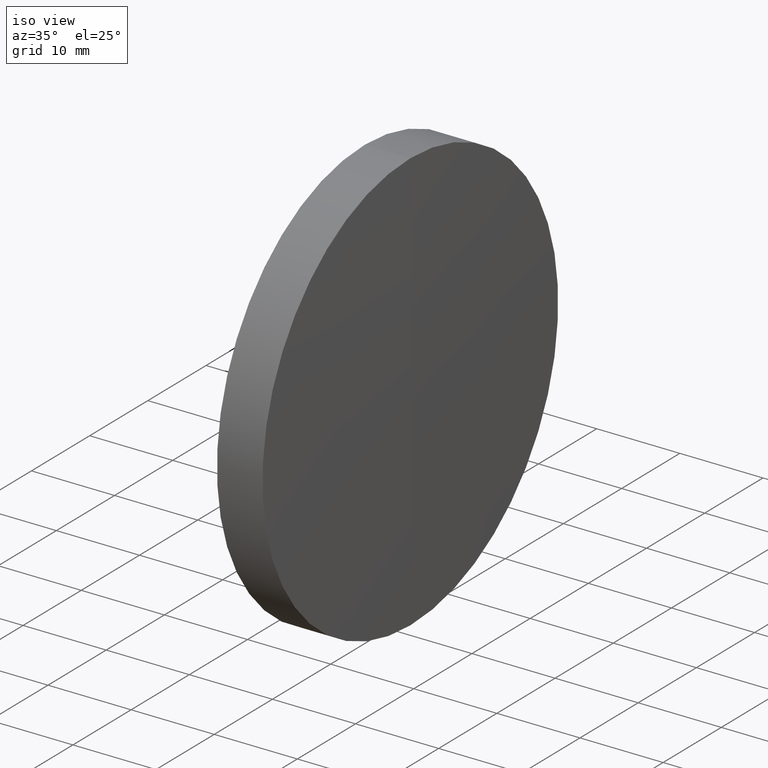
[diagram: clean part render]
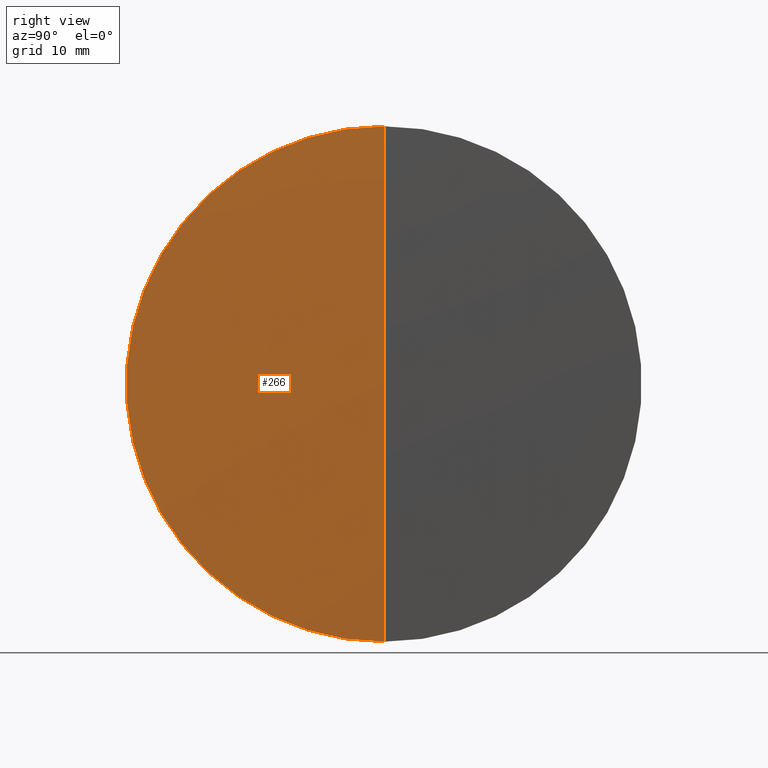
[diagram: tour spotlight — one face highlighted and labeled with its STEP entity id]
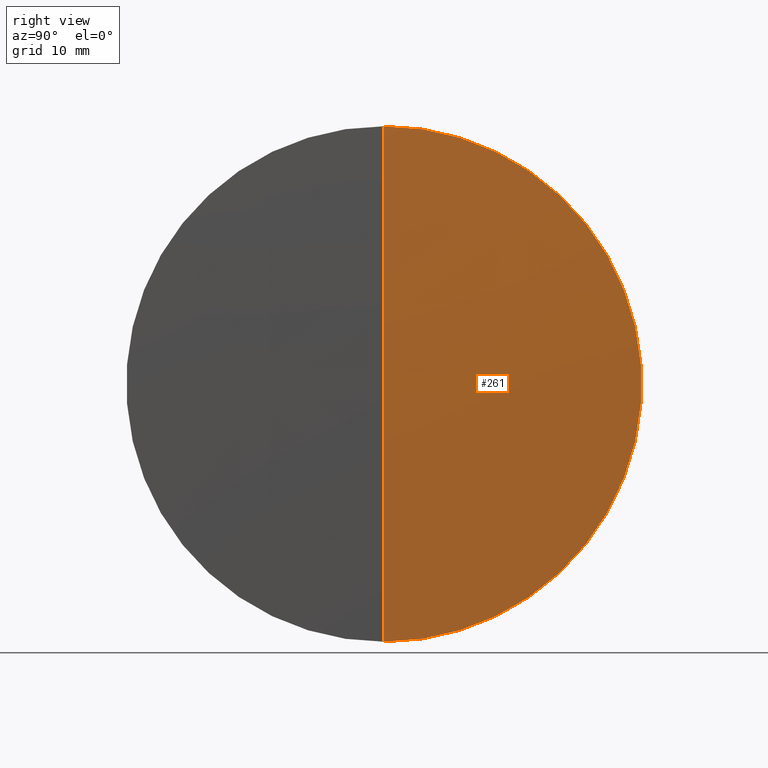
[diagram: tour spotlight — one face highlighted and labeled with its STEP entity id]
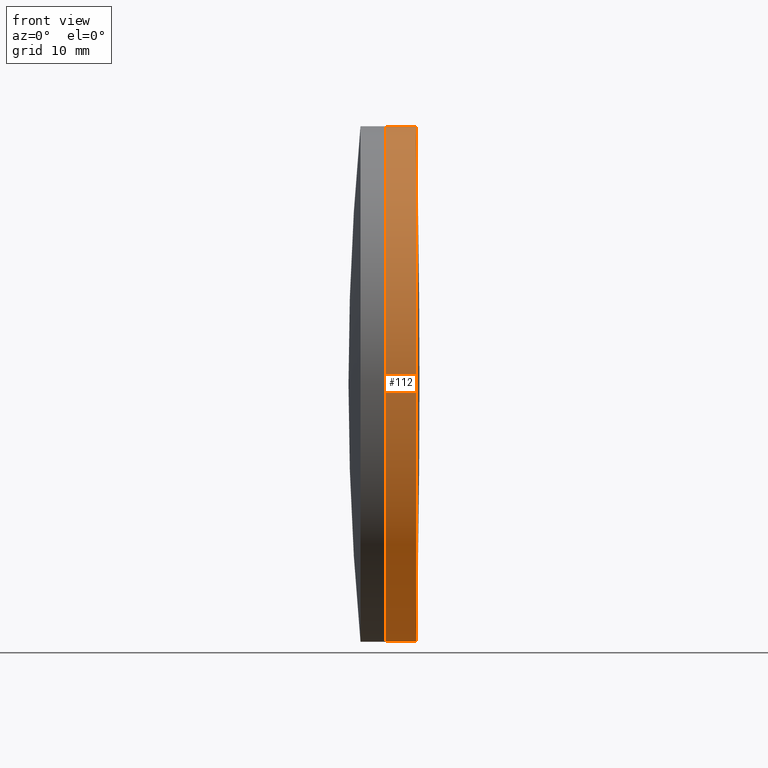
[diagram: tour spotlight — one face highlighted and labeled with its STEP entity id]
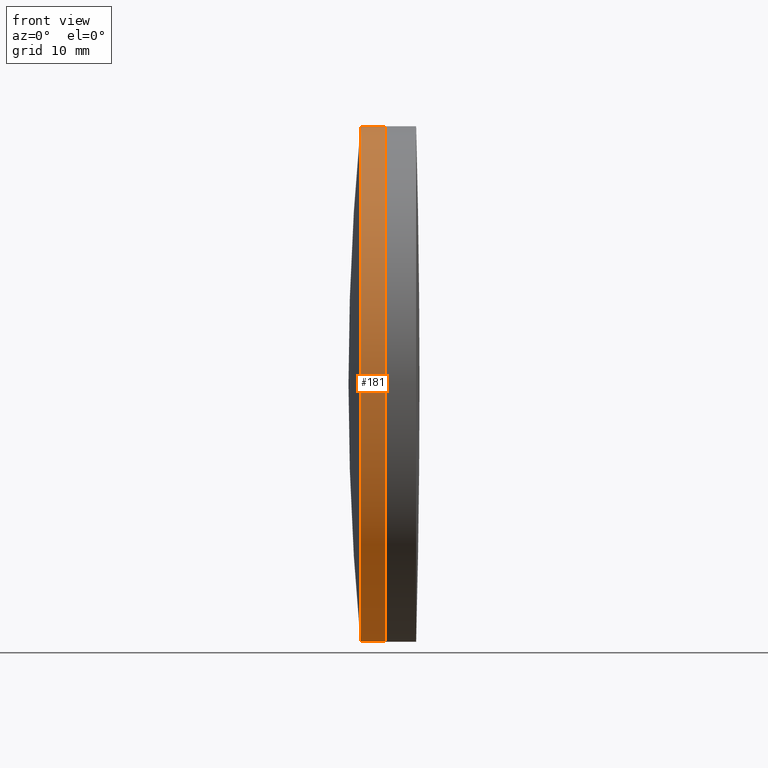
[diagram: tour spotlight — one face highlighted and labeled with its STEP entity id]
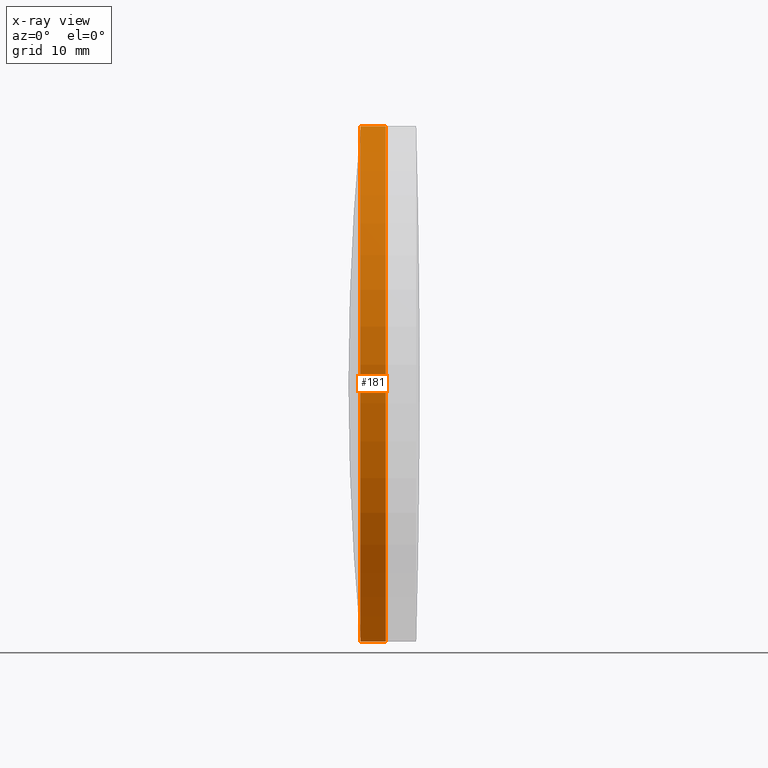
[diagram: x-ray of the same camera — body ghosted, this tour face saturated]
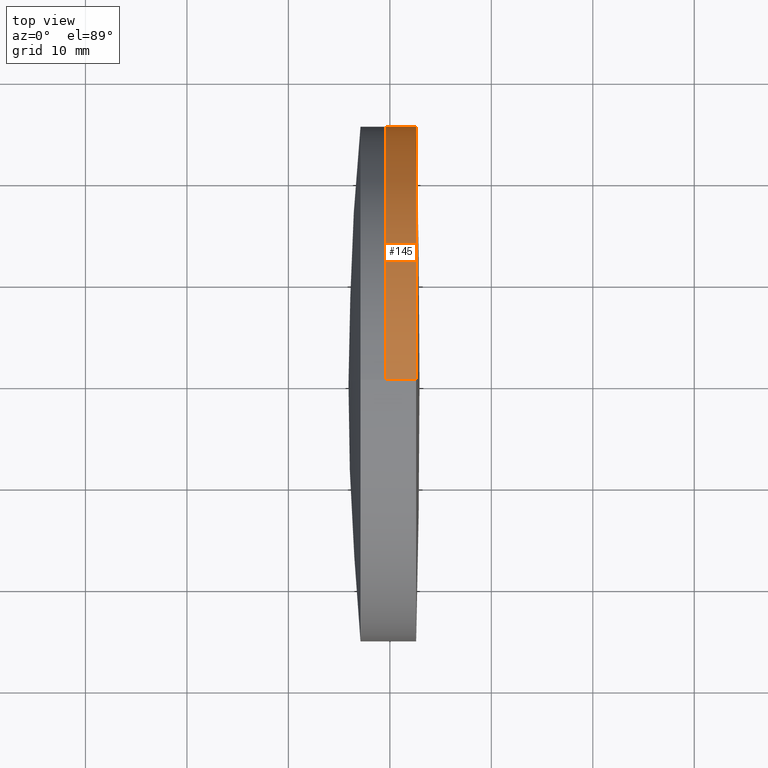
[diagram: tour spotlight — one face highlighted and labeled with its STEP entity id]
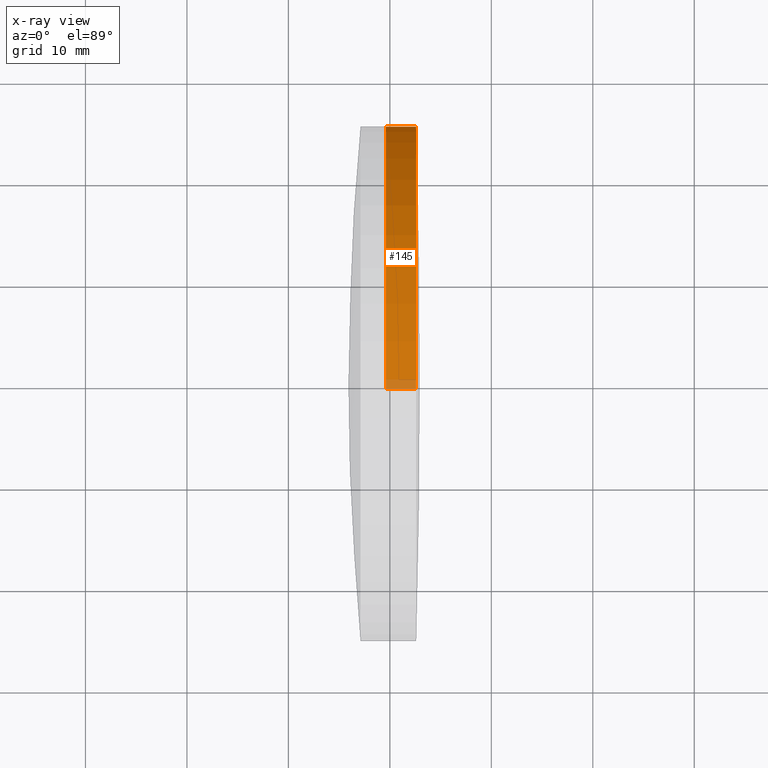
[diagram: x-ray of the same camera — body ghosted, this tour face saturated]
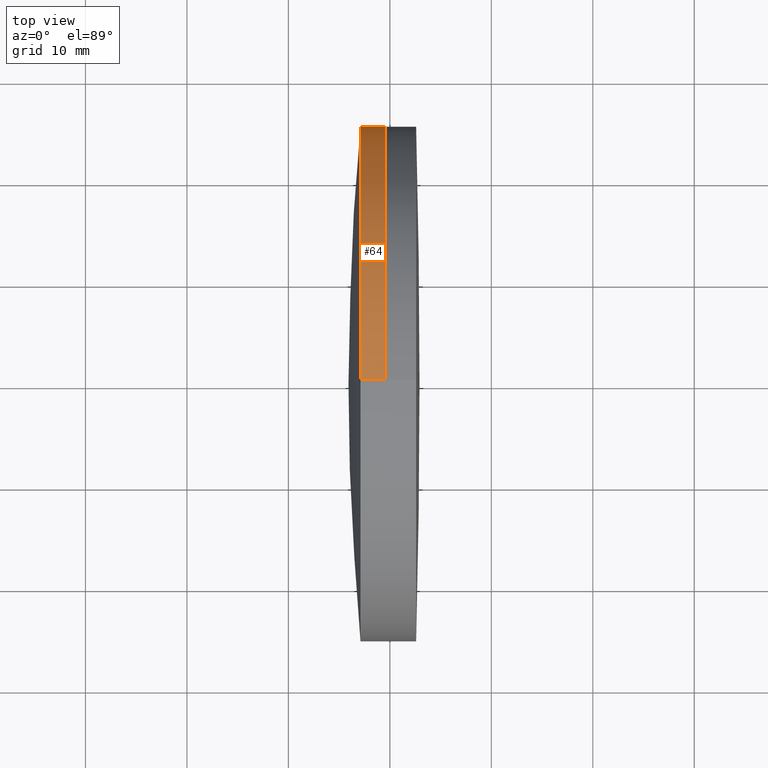
[diagram: tour spotlight — one face highlighted and labeled with its STEP entity id]
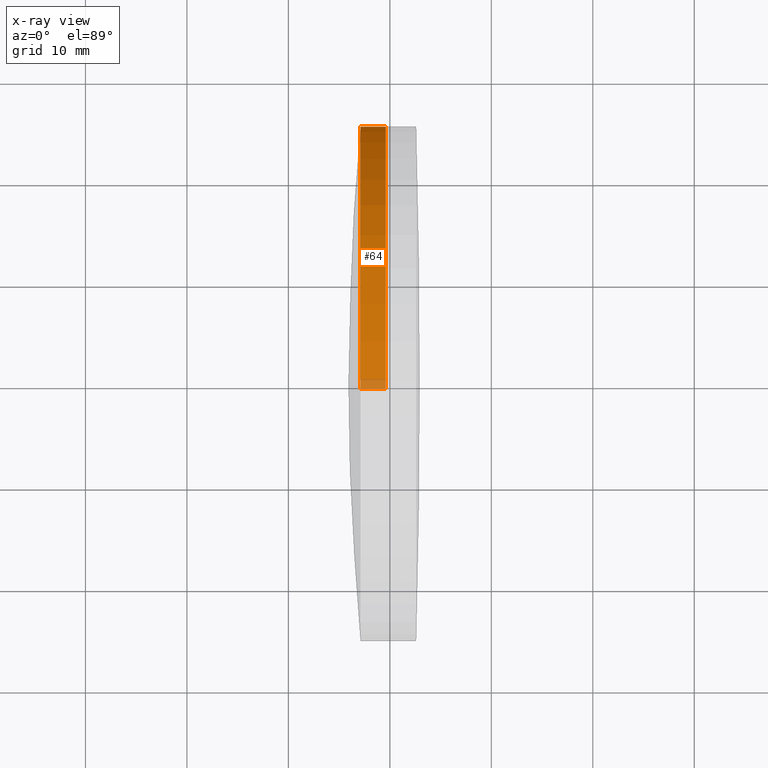
[diagram: x-ray of the same camera — body ghosted, this tour face saturated]
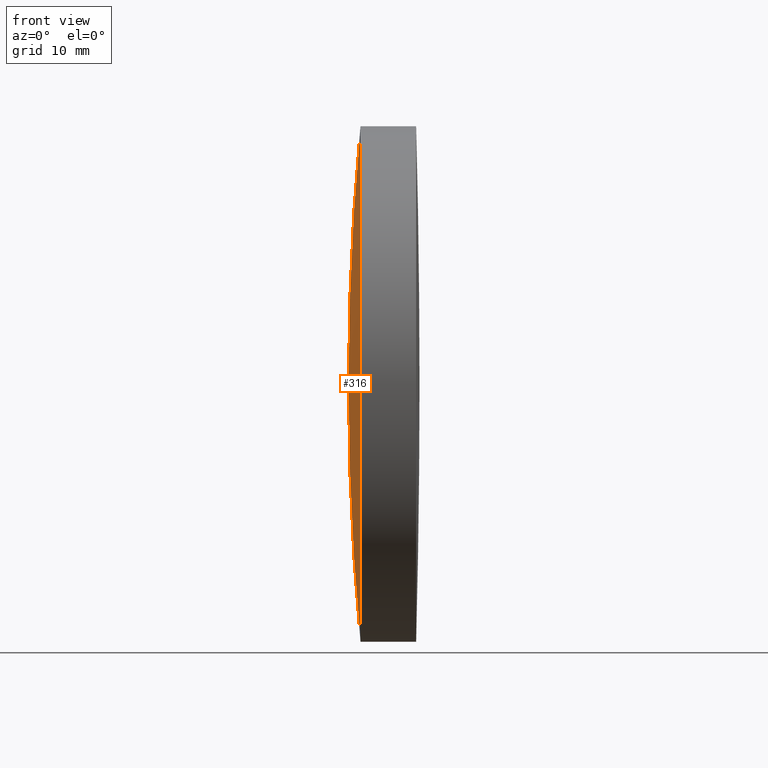
[diagram: tour spotlight — one face highlighted and labeled with its STEP entity id]
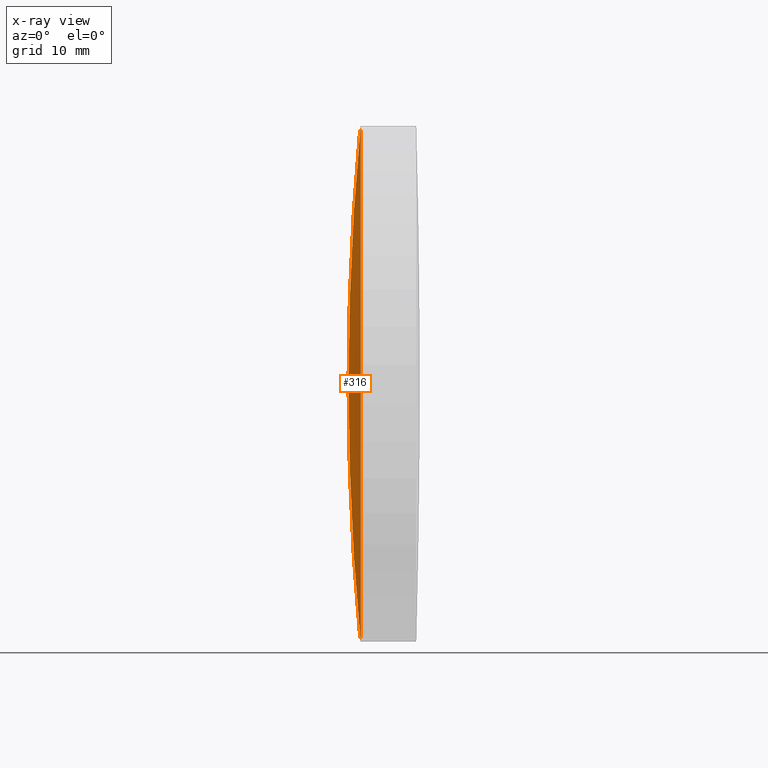
[diagram: x-ray of the same camera — body ghosted, this tour face saturated]
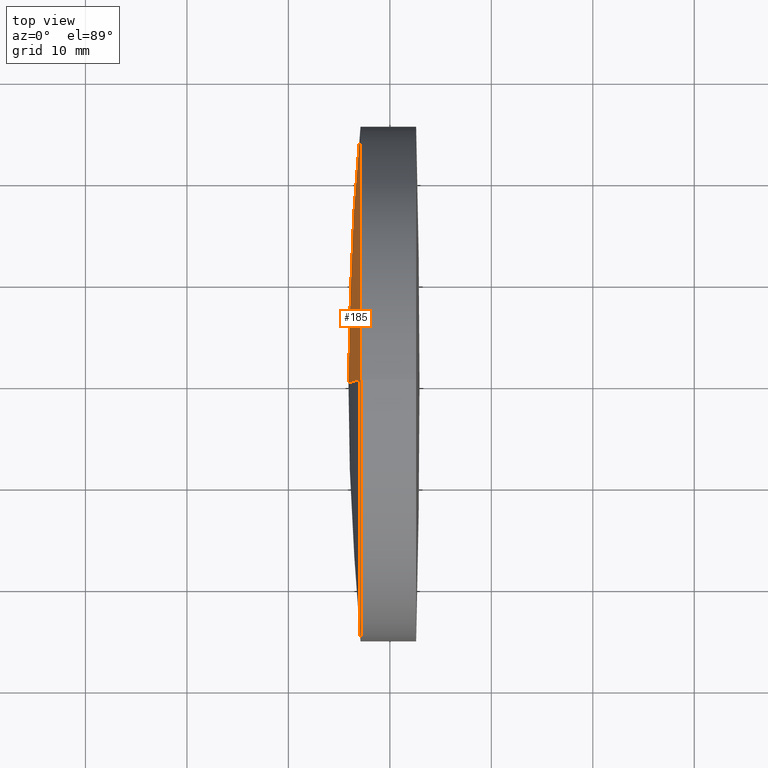
[diagram: tour spotlight — one face highlighted and labeled with its STEP entity id]
A machine part: a face-by-face anatomy tour. The part has 12 B-rep faces; the first image is the clean iso view, then the 8 largest visible faces are spotlighted one at a time (largest first), each with its STEP entity span.

Face 1 — right view, entity #266. In plain terms, the highlighted spherical surface has radius 970 mm.
Definition (entity closure, byte-faithful):
#17 = DIRECTION ( 'NONE',  ( 0.0000000000000000000, -1.000000000000000000, 0.0000000000000000000 ) ) ;
#41 = CARTESIAN_POINT ( 'NONE',  ( -467.0782175569086100, 0.0000000000000000000, 0.0000000000000000000 ) ) ;
#49 = DIRECTION ( 'NONE',  ( -0.0000000000000000000, 1.000000000000000000, 1.224646799147353200E-016 ) ) ;
#68 = AXIS2_PLACEMENT_3D ( 'NONE', #41, #92, #297 ) ;
#87 = CARTESIAN_POINT ( 'NONE',  ( 502.9217824430913900, 0.0000000000000000000, 5.939536975864663500E-014 ) ) ;
#92 = DIRECTION ( 'NONE',  ( 0.0000000000000000000, 1.000000000000000000, 0.0000000000000000000 ) ) ;
#103 = CIRCLE ( 'NONE', #183, 25.39999999999961100 ) ;
#111 = DIRECTION ( 'NONE',  ( 0.0000000000000000000, 0.0000000000000000000, 1.000000000000000000 ) ) ;
#139 = CARTESIAN_POINT ( 'NONE',  ( -467.0782175569086100, 0.0000000000000000000, 0.0000000000000000000 ) ) ;
#143 = FACE_OUTER_BOUND ( 'NONE', #303, .T. ) ;
#150 = AXIS2_PLACEMENT_3D ( 'NONE', #139, #17, #204 ) ;
#164 = ORIENTED_EDGE ( 'NONE', *, *, #315, .F. ) ;
#176 = SPHERICAL_SURFACE ( 'NONE', #68, 970.0000000000000000 ) ;
#183 = AXIS2_PLACEMENT_3D ( 'NONE', #184, #239, #111 ) ;
#184 = CARTESIAN_POINT ( 'NONE',  ( 502.5891687153119800, 0.0000000000000000000, 0.0000000000000000000 ) ) ;
#193 = EDGE_CURVE ( 'NONE', #284, #222, #299, .T. ) ;
#196 = VERTEX_POINT ( 'NONE', #259 ) ;
#204 = DIRECTION ( 'NONE',  ( 0.0000000000000000000, 0.0000000000000000000, -1.000000000000000000 ) ) ;
#215 = DIRECTION ( 'NONE',  ( 0.0000000000000000000, -1.224646799147353200E-016, 1.000000000000000000 ) ) ;
#222 = VERTEX_POINT ( 'NONE', #340 ) ;
#236 = ORIENTED_EDGE ( 'NONE', *, *, #193, .T. ) ;
#239 = DIRECTION ( 'NONE',  ( -1.000000000000000000, -0.0000000000000000000, -0.0000000000000000000 ) ) ;
#241 = CARTESIAN_POINT ( 'NONE',  ( -467.0782175569086100, 0.0000000000000000000, 0.0000000000000000000 ) ) ;
#248 = EDGE_CURVE ( 'NONE', #196, #222, #103, .T. ) ;
#259 = CARTESIAN_POINT ( 'NONE',  ( 502.5891687153119800, 3.110602869834232300E-015, -25.39999999999961100 ) ) ;
#266 = ADVANCED_FACE ( 'NONE', ( #143 ), #176, .T. ) ;
#268 = ORIENTED_EDGE ( 'NONE', *, *, #248, .F. ) ;
#284 = VERTEX_POINT ( 'NONE', #87 ) ;
#297 = DIRECTION ( 'NONE',  ( 0.0000000000000000000, 0.0000000000000000000, 1.000000000000000000 ) ) ;
#299 = CIRCLE ( 'NONE', #150, 970.0000000000000000 ) ;
#302 = AXIS2_PLACEMENT_3D ( 'NONE', #241, #49, #215 ) ;
#303 = EDGE_LOOP ( 'NONE', ( #164, #236, #268 ) ) ;
#315 = EDGE_CURVE ( 'NONE', #284, #196, #335, .T. ) ;
#335 = CIRCLE ( 'NONE', #302, 970.0000000000000000 ) ;
#340 = CARTESIAN_POINT ( 'NONE',  ( 502.5891687153119800, 0.0000000000000000000, 25.39999999999961100 ) ) ;

Face 2 — right view, entity #261. In plain terms, the highlighted spherical surface has radius 970 mm.
Definition (entity closure, byte-faithful):
#10 = ORIENTED_EDGE ( 'NONE', *, *, #193, .F. ) ;
#17 = DIRECTION ( 'NONE',  ( 0.0000000000000000000, -1.000000000000000000, 0.0000000000000000000 ) ) ;
#37 = AXIS2_PLACEMENT_3D ( 'NONE', #290, #323, #346 ) ;
#40 = DIRECTION ( 'NONE',  ( 0.0000000000000000000, 1.000000000000000000, 0.0000000000000000000 ) ) ;
#49 = DIRECTION ( 'NONE',  ( -0.0000000000000000000, 1.000000000000000000, 1.224646799147353200E-016 ) ) ;
#56 = SPHERICAL_SURFACE ( 'NONE', #57, 970.0000000000000000 ) ;
#57 = AXIS2_PLACEMENT_3D ( 'NONE', #116, #40, #177 ) ;
#87 = CARTESIAN_POINT ( 'NONE',  ( 502.9217824430913900, 0.0000000000000000000, 5.939536975864663500E-014 ) ) ;
#110 = ORIENTED_EDGE ( 'NONE', *, *, #315, .T. ) ;
#116 = CARTESIAN_POINT ( 'NONE',  ( -467.0782175569086100, 0.0000000000000000000, 0.0000000000000000000 ) ) ;
#118 = EDGE_LOOP ( 'NONE', ( #10, #110, #338 ) ) ;
#139 = CARTESIAN_POINT ( 'NONE',  ( -467.0782175569086100, 0.0000000000000000000, 0.0000000000000000000 ) ) ;
#150 = AXIS2_PLACEMENT_3D ( 'NONE', #139, #17, #204 ) ;
#177 = DIRECTION ( 'NONE',  ( 0.0000000000000000000, 0.0000000000000000000, 1.000000000000000000 ) ) ;
#193 = EDGE_CURVE ( 'NONE', #284, #222, #299, .T. ) ;
#196 = VERTEX_POINT ( 'NONE', #259 ) ;
#204 = DIRECTION ( 'NONE',  ( 0.0000000000000000000, 0.0000000000000000000, -1.000000000000000000 ) ) ;
#215 = DIRECTION ( 'NONE',  ( 0.0000000000000000000, -1.224646799147353200E-016, 1.000000000000000000 ) ) ;
#220 = CIRCLE ( 'NONE', #37, 25.39999999999961100 ) ;
#222 = VERTEX_POINT ( 'NONE', #340 ) ;
#241 = CARTESIAN_POINT ( 'NONE',  ( -467.0782175569086100, 0.0000000000000000000, 0.0000000000000000000 ) ) ;
#242 = EDGE_CURVE ( 'NONE', #222, #196, #220, .T. ) ;
#259 = CARTESIAN_POINT ( 'NONE',  ( 502.5891687153119800, 3.110602869834232300E-015, -25.39999999999961100 ) ) ;
#260 = FACE_OUTER_BOUND ( 'NONE', #118, .T. ) ;
#261 = ADVANCED_FACE ( 'NONE', ( #260 ), #56, .T. ) ;
#284 = VERTEX_POINT ( 'NONE', #87 ) ;
#290 = CARTESIAN_POINT ( 'NONE',  ( 502.5891687153119800, 0.0000000000000000000, 0.0000000000000000000 ) ) ;
#299 = CIRCLE ( 'NONE', #150, 970.0000000000000000 ) ;
#302 = AXIS2_PLACEMENT_3D ( 'NONE', #241, #49, #215 ) ;
#315 = EDGE_CURVE ( 'NONE', #284, #196, #335, .T. ) ;
#323 = DIRECTION ( 'NONE',  ( -1.000000000000000000, -0.0000000000000000000, -0.0000000000000000000 ) ) ;
#335 = CIRCLE ( 'NONE', #302, 970.0000000000000000 ) ;
#338 = ORIENTED_EDGE ( 'NONE', *, *, #242, .F. ) ;
#340 = CARTESIAN_POINT ( 'NONE',  ( 502.5891687153119800, 0.0000000000000000000, 25.39999999999961100 ) ) ;
#346 = DIRECTION ( 'NONE',  ( 0.0000000000000000000, 0.0000000000000000000, 1.000000000000000000 ) ) ;

Face 3 — front view, entity #112. In plain terms, the highlighted cylindrical surface (partial cylindrical patch) has radius 25.4 mm, axis along (-1, -0, -0).
Definition (entity closure, byte-faithful):
#19 = CARTESIAN_POINT ( 'NONE',  ( 499.5922971757753400, 0.0000000000000000000, 25.39999999999962900 ) ) ;
#35 = DIRECTION ( 'NONE',  ( 0.0000000000000000000, 0.0000000000000000000, 1.000000000000000000 ) ) ;
#55 = ORIENTED_EDGE ( 'NONE', *, *, #248, .T. ) ;
#75 = EDGE_CURVE ( 'NONE', #196, #280, #218, .T. ) ;
#84 = CARTESIAN_POINT ( 'NONE',  ( -0.5519199926577972300, 0.0000000000000000000, 25.39999999999965000 ) ) ;
#86 = VECTOR ( 'NONE', #228, 1000.000000000000000 ) ;
#91 = EDGE_CURVE ( 'NONE', #222, #235, #311, .T. ) ;
#97 = EDGE_LOOP ( 'NONE', ( #308, #55, #104, #210 ) ) ;
#103 = CIRCLE ( 'NONE', #183, 25.39999999999961100 ) ;
#104 = ORIENTED_EDGE ( 'NONE', *, *, #91, .T. ) ;
#109 = CARTESIAN_POINT ( 'NONE',  ( -0.5519199926577972300, 0.0000000000000000000, 0.0000000000000000000 ) ) ;
#111 = DIRECTION ( 'NONE',  ( 0.0000000000000000000, 0.0000000000000000000, 1.000000000000000000 ) ) ;
#112 = ADVANCED_FACE ( 'NONE', ( #253 ), #179, .T. ) ;
#147 = DIRECTION ( 'NONE',  ( -1.000000000000000000, -0.0000000000000000000, -0.0000000000000000000 ) ) ;
#179 = CYLINDRICAL_SURFACE ( 'NONE', #334, 25.39999999999965000 ) ;
#183 = AXIS2_PLACEMENT_3D ( 'NONE', #184, #239, #111 ) ;
#184 = CARTESIAN_POINT ( 'NONE',  ( 502.5891687153119800, 0.0000000000000000000, 0.0000000000000000000 ) ) ;
#196 = VERTEX_POINT ( 'NONE', #259 ) ;
#203 = AXIS2_PLACEMENT_3D ( 'NONE', #269, #147, #207 ) ;
#207 = DIRECTION ( 'NONE',  ( 0.0000000000000000000, 0.0000000000000000000, 1.000000000000000000 ) ) ;
#210 = ORIENTED_EDGE ( 'NONE', *, *, #271, .F. ) ;
#218 = LINE ( 'NONE', #226, #86 ) ;
#222 = VERTEX_POINT ( 'NONE', #340 ) ;
#226 = CARTESIAN_POINT ( 'NONE',  ( -0.5519199926577972300, 3.110602869834234700E-015, -25.39999999999965000 ) ) ;
#228 = DIRECTION ( 'NONE',  ( -1.000000000000000000, -0.0000000000000000000, -0.0000000000000000000 ) ) ;
#235 = VERTEX_POINT ( 'NONE', #19 ) ;
#238 = CARTESIAN_POINT ( 'NONE',  ( 499.5922971757753400, 3.110602869834231500E-015, -25.39999999999962900 ) ) ;
#239 = DIRECTION ( 'NONE',  ( -1.000000000000000000, -0.0000000000000000000, -0.0000000000000000000 ) ) ;
#248 = EDGE_CURVE ( 'NONE', #196, #222, #103, .T. ) ;
#253 = FACE_OUTER_BOUND ( 'NONE', #97, .T. ) ;
#259 = CARTESIAN_POINT ( 'NONE',  ( 502.5891687153119800, 3.110602869834232300E-015, -25.39999999999961100 ) ) ;
#267 = CIRCLE ( 'NONE', #203, 25.39999999999969300 ) ;
#269 = CARTESIAN_POINT ( 'NONE',  ( 499.5922971757753400, 0.0000000000000000000, 0.0000000000000000000 ) ) ;
#271 = EDGE_CURVE ( 'NONE', #280, #235, #267, .T. ) ;
#280 = VERTEX_POINT ( 'NONE', #238 ) ;
#289 = DIRECTION ( 'NONE',  ( -1.000000000000000000, -0.0000000000000000000, -0.0000000000000000000 ) ) ;
#294 = VECTOR ( 'NONE', #289, 1000.000000000000000 ) ;
#308 = ORIENTED_EDGE ( 'NONE', *, *, #75, .F. ) ;
#311 = LINE ( 'NONE', #84, #294 ) ;
#314 = DIRECTION ( 'NONE',  ( -1.000000000000000000, -0.0000000000000000000, -0.0000000000000000000 ) ) ;
#334 = AXIS2_PLACEMENT_3D ( 'NONE', #109, #314, #35 ) ;
#340 = CARTESIAN_POINT ( 'NONE',  ( 502.5891687153119800, 0.0000000000000000000, 25.39999999999961100 ) ) ;

Face 4 — front view, entity #181. An x-ray twin of the same camera follows (body ghosted, this face saturated) — the face is partly hidden behind the body. In plain terms, the highlighted cylindrical surface (partial cylindrical patch) has radius 25.4 mm, axis along (-1, -0, -0).
Definition (entity closure, byte-faithful):
#6 = VECTOR ( 'NONE', #11, 1000.000000000000000 ) ;
#11 = DIRECTION ( 'NONE',  ( -1.000000000000000000, -0.0000000000000000000, -0.0000000000000000000 ) ) ;
#12 = EDGE_CURVE ( 'NONE', #211, #15, #39, .T. ) ;
#15 = VERTEX_POINT ( 'NONE', #224 ) ;
#16 = DIRECTION ( 'NONE',  ( 0.0000000000000000000, 0.0000000000000000000, 1.000000000000000000 ) ) ;
#39 = LINE ( 'NONE', #165, #6 ) ;
#48 = ORIENTED_EDGE ( 'NONE', *, *, #158, .T. ) ;
#53 = EDGE_CURVE ( 'NONE', #211, #71, #281, .T. ) ;
#60 = ORIENTED_EDGE ( 'NONE', *, *, #12, .F. ) ;
#63 = DIRECTION ( 'NONE',  ( -1.000000000000000000, -0.0000000000000000000, -0.0000000000000000000 ) ) ;
#71 = VERTEX_POINT ( 'NONE', #221 ) ;
#77 = FACE_OUTER_BOUND ( 'NONE', #192, .T. ) ;
#89 = VERTEX_POINT ( 'NONE', #108 ) ;
#108 = CARTESIAN_POINT ( 'NONE',  ( 497.1063982632478000, -3.110602869834300500E-015, 25.40000000000019800 ) ) ;
#117 = CYLINDRICAL_SURFACE ( 'NONE', #209, 25.40000000000000200 ) ;
#121 = AXIS2_PLACEMENT_3D ( 'NONE', #332, #132, #134 ) ;
#132 = DIRECTION ( 'NONE',  ( -1.000000000000000000, -0.0000000000000000000, -0.0000000000000000000 ) ) ;
#134 = DIRECTION ( 'NONE',  ( 0.0000000000000000000, 0.0000000000000000000, 1.000000000000000000 ) ) ;
#137 = LINE ( 'NONE', #310, #233 ) ;
#158 = EDGE_CURVE ( 'NONE', #71, #89, #137, .T. ) ;
#165 = CARTESIAN_POINT ( 'NONE',  ( 124.5233095260452400, 3.110602869834277300E-015, -25.40000000000000200 ) ) ;
#170 = DIRECTION ( 'NONE',  ( -1.000000000000000000, -0.0000000000000000000, -0.0000000000000000000 ) ) ;
#180 = ORIENTED_EDGE ( 'NONE', *, *, #230, .F. ) ;
#181 = ADVANCED_FACE ( 'NONE', ( #77 ), #117, .T. ) ;
#182 = ORIENTED_EDGE ( 'NONE', *, *, #53, .T. ) ;
#192 = EDGE_LOOP ( 'NONE', ( #60, #182, #48, #180 ) ) ;
#209 = AXIS2_PLACEMENT_3D ( 'NONE', #232, #170, #16 ) ;
#211 = VERTEX_POINT ( 'NONE', #282 ) ;
#212 = DIRECTION ( 'NONE',  ( 0.0000000000000000000, 0.0000000000000000000, 1.000000000000000000 ) ) ;
#221 = CARTESIAN_POINT ( 'NONE',  ( 499.5922971757753400, 0.0000000000000000000, 25.40000000000000200 ) ) ;
#224 = CARTESIAN_POINT ( 'NONE',  ( 497.1063982632478000, 0.0000000000000000000, -25.40000000000019400 ) ) ;
#230 = EDGE_CURVE ( 'NONE', #15, #89, #331, .T. ) ;
#232 = CARTESIAN_POINT ( 'NONE',  ( 124.5233095260452400, 0.0000000000000000000, 0.0000000000000000000 ) ) ;
#233 = VECTOR ( 'NONE', #339, 1000.000000000000000 ) ;
#281 = CIRCLE ( 'NONE', #121, 25.40000000000000200 ) ;
#282 = CARTESIAN_POINT ( 'NONE',  ( 499.5922971757753400, 3.110602869834277300E-015, -25.40000000000000200 ) ) ;
#293 = CARTESIAN_POINT ( 'NONE',  ( 497.1063982632478000, 0.0000000000000000000, 0.0000000000000000000 ) ) ;
#305 = AXIS2_PLACEMENT_3D ( 'NONE', #293, #63, #212 ) ;
#310 = CARTESIAN_POINT ( 'NONE',  ( 124.5233095260452400, 0.0000000000000000000, 25.40000000000000200 ) ) ;
#331 = CIRCLE ( 'NONE', #305, 25.40000000000000200 ) ;
#332 = CARTESIAN_POINT ( 'NONE',  ( 499.5922971757753400, 0.0000000000000000000, 0.0000000000000000000 ) ) ;
#339 = DIRECTION ( 'NONE',  ( -1.000000000000000000, -0.0000000000000000000, -0.0000000000000000000 ) ) ;

Face 5 — top view, entity #145. An x-ray twin of the same camera follows (body ghosted, this face saturated) — the face is partly hidden behind the body. In plain terms, the highlighted cylindrical surface (partial cylindrical patch) has radius 25.4 mm, axis along (-1, -0, -0).
Definition (entity closure, byte-faithful):
#19 = CARTESIAN_POINT ( 'NONE',  ( 499.5922971757753400, 0.0000000000000000000, 25.39999999999962900 ) ) ;
#26 = FACE_OUTER_BOUND ( 'NONE', #173, .T. ) ;
#32 = ORIENTED_EDGE ( 'NONE', *, *, #91, .F. ) ;
#33 = ORIENTED_EDGE ( 'NONE', *, *, #178, .F. ) ;
#36 = ORIENTED_EDGE ( 'NONE', *, *, #242, .T. ) ;
#37 = AXIS2_PLACEMENT_3D ( 'NONE', #290, #323, #346 ) ;
#75 = EDGE_CURVE ( 'NONE', #196, #280, #218, .T. ) ;
#81 = CYLINDRICAL_SURFACE ( 'NONE', #169, 25.39999999999965000 ) ;
#84 = CARTESIAN_POINT ( 'NONE',  ( -0.5519199926577972300, 0.0000000000000000000, 25.39999999999965000 ) ) ;
#86 = VECTOR ( 'NONE', #228, 1000.000000000000000 ) ;
#91 = EDGE_CURVE ( 'NONE', #222, #235, #311, .T. ) ;
#105 = CARTESIAN_POINT ( 'NONE',  ( -0.5519199926577972300, 0.0000000000000000000, 0.0000000000000000000 ) ) ;
#145 = ADVANCED_FACE ( 'NONE', ( #26 ), #81, .T. ) ;
#169 = AXIS2_PLACEMENT_3D ( 'NONE', #105, #285, #206 ) ;
#171 = DIRECTION ( 'NONE',  ( 0.0000000000000000000, 0.0000000000000000000, 1.000000000000000000 ) ) ;
#173 = EDGE_LOOP ( 'NONE', ( #36, #341, #33, #32 ) ) ;
#174 = CARTESIAN_POINT ( 'NONE',  ( 499.5922971757753400, 0.0000000000000000000, 0.0000000000000000000 ) ) ;
#178 = EDGE_CURVE ( 'NONE', #235, #280, #256, .T. ) ;
#196 = VERTEX_POINT ( 'NONE', #259 ) ;
#206 = DIRECTION ( 'NONE',  ( 0.0000000000000000000, 0.0000000000000000000, 1.000000000000000000 ) ) ;
#218 = LINE ( 'NONE', #226, #86 ) ;
#220 = CIRCLE ( 'NONE', #37, 25.39999999999961100 ) ;
#222 = VERTEX_POINT ( 'NONE', #340 ) ;
#226 = CARTESIAN_POINT ( 'NONE',  ( -0.5519199926577972300, 3.110602869834234700E-015, -25.39999999999965000 ) ) ;
#228 = DIRECTION ( 'NONE',  ( -1.000000000000000000, -0.0000000000000000000, -0.0000000000000000000 ) ) ;
#235 = VERTEX_POINT ( 'NONE', #19 ) ;
#238 = CARTESIAN_POINT ( 'NONE',  ( 499.5922971757753400, 3.110602869834231500E-015, -25.39999999999962900 ) ) ;
#242 = EDGE_CURVE ( 'NONE', #222, #196, #220, .T. ) ;
#256 = CIRCLE ( 'NONE', #343, 25.39999999999969300 ) ;
#259 = CARTESIAN_POINT ( 'NONE',  ( 502.5891687153119800, 3.110602869834232300E-015, -25.39999999999961100 ) ) ;
#280 = VERTEX_POINT ( 'NONE', #238 ) ;
#285 = DIRECTION ( 'NONE',  ( -1.000000000000000000, -0.0000000000000000000, -0.0000000000000000000 ) ) ;
#289 = DIRECTION ( 'NONE',  ( -1.000000000000000000, -0.0000000000000000000, -0.0000000000000000000 ) ) ;
#290 = CARTESIAN_POINT ( 'NONE',  ( 502.5891687153119800, 0.0000000000000000000, 0.0000000000000000000 ) ) ;
#294 = VECTOR ( 'NONE', #289, 1000.000000000000000 ) ;
#311 = LINE ( 'NONE', #84, #294 ) ;
#312 = DIRECTION ( 'NONE',  ( -1.000000000000000000, -0.0000000000000000000, -0.0000000000000000000 ) ) ;
#323 = DIRECTION ( 'NONE',  ( -1.000000000000000000, -0.0000000000000000000, -0.0000000000000000000 ) ) ;
#340 = CARTESIAN_POINT ( 'NONE',  ( 502.5891687153119800, 0.0000000000000000000, 25.39999999999961100 ) ) ;
#341 = ORIENTED_EDGE ( 'NONE', *, *, #75, .T. ) ;
#343 = AXIS2_PLACEMENT_3D ( 'NONE', #174, #312, #171 ) ;
#346 = DIRECTION ( 'NONE',  ( 0.0000000000000000000, 0.0000000000000000000, 1.000000000000000000 ) ) ;

Face 6 — top view, entity #64. An x-ray twin of the same camera follows (body ghosted, this face saturated) — the face is partly hidden behind the body. In plain terms, the highlighted cylindrical surface (partial cylindrical patch) has radius 25.4 mm, axis along (-1, -0, -0).
Definition (entity closure, byte-faithful):
#1 = FACE_OUTER_BOUND ( 'NONE', #96, .T. ) ;
#6 = VECTOR ( 'NONE', #11, 1000.000000000000000 ) ;
#11 = DIRECTION ( 'NONE',  ( -1.000000000000000000, -0.0000000000000000000, -0.0000000000000000000 ) ) ;
#12 = EDGE_CURVE ( 'NONE', #211, #15, #39, .T. ) ;
#15 = VERTEX_POINT ( 'NONE', #224 ) ;
#28 = ORIENTED_EDGE ( 'NONE', *, *, #205, .F. ) ;
#29 = CARTESIAN_POINT ( 'NONE',  ( 124.5233095260452400, 0.0000000000000000000, 0.0000000000000000000 ) ) ;
#30 = CIRCLE ( 'NONE', #325, 25.40000000000000200 ) ;
#34 = DIRECTION ( 'NONE',  ( -1.000000000000000000, -0.0000000000000000000, -0.0000000000000000000 ) ) ;
#39 = LINE ( 'NONE', #165, #6 ) ;
#64 = ADVANCED_FACE ( 'NONE', ( #1 ), #320, .T. ) ;
#66 = CARTESIAN_POINT ( 'NONE',  ( 499.5922971757753400, 0.0000000000000000000, 0.0000000000000000000 ) ) ;
#71 = VERTEX_POINT ( 'NONE', #221 ) ;
#89 = VERTEX_POINT ( 'NONE', #108 ) ;
#94 = CIRCLE ( 'NONE', #227, 25.40000000000000200 ) ;
#96 = EDGE_LOOP ( 'NONE', ( #295, #148, #28, #225 ) ) ;
#108 = CARTESIAN_POINT ( 'NONE',  ( 497.1063982632478000, -3.110602869834300500E-015, 25.40000000000019800 ) ) ;
#127 = AXIS2_PLACEMENT_3D ( 'NONE', #29, #34, #167 ) ;
#137 = LINE ( 'NONE', #310, #233 ) ;
#148 = ORIENTED_EDGE ( 'NONE', *, *, #12, .T. ) ;
#149 = DIRECTION ( 'NONE',  ( -1.000000000000000000, -0.0000000000000000000, -0.0000000000000000000 ) ) ;
#152 = DIRECTION ( 'NONE',  ( 0.0000000000000000000, 0.0000000000000000000, 1.000000000000000000 ) ) ;
#158 = EDGE_CURVE ( 'NONE', #71, #89, #137, .T. ) ;
#165 = CARTESIAN_POINT ( 'NONE',  ( 124.5233095260452400, 3.110602869834277300E-015, -25.40000000000000200 ) ) ;
#167 = DIRECTION ( 'NONE',  ( 0.0000000000000000000, 0.0000000000000000000, 1.000000000000000000 ) ) ;
#175 = CARTESIAN_POINT ( 'NONE',  ( 497.1063982632478000, 0.0000000000000000000, 0.0000000000000000000 ) ) ;
#205 = EDGE_CURVE ( 'NONE', #89, #15, #94, .T. ) ;
#211 = VERTEX_POINT ( 'NONE', #282 ) ;
#221 = CARTESIAN_POINT ( 'NONE',  ( 499.5922971757753400, 0.0000000000000000000, 25.40000000000000200 ) ) ;
#224 = CARTESIAN_POINT ( 'NONE',  ( 497.1063982632478000, 0.0000000000000000000, -25.40000000000019400 ) ) ;
#225 = ORIENTED_EDGE ( 'NONE', *, *, #158, .F. ) ;
#227 = AXIS2_PLACEMENT_3D ( 'NONE', #175, #149, #237 ) ;
#233 = VECTOR ( 'NONE', #339, 1000.000000000000000 ) ;
#237 = DIRECTION ( 'NONE',  ( 0.0000000000000000000, 0.0000000000000000000, 1.000000000000000000 ) ) ;
#263 = DIRECTION ( 'NONE',  ( -1.000000000000000000, -0.0000000000000000000, -0.0000000000000000000 ) ) ;
#265 = EDGE_CURVE ( 'NONE', #71, #211, #30, .T. ) ;
#282 = CARTESIAN_POINT ( 'NONE',  ( 499.5922971757753400, 3.110602869834277300E-015, -25.40000000000000200 ) ) ;
#295 = ORIENTED_EDGE ( 'NONE', *, *, #265, .T. ) ;
#310 = CARTESIAN_POINT ( 'NONE',  ( 124.5233095260452400, 0.0000000000000000000, 25.40000000000000200 ) ) ;
#320 = CYLINDRICAL_SURFACE ( 'NONE', #127, 25.40000000000000200 ) ;
#325 = AXIS2_PLACEMENT_3D ( 'NONE', #66, #263, #152 ) ;
#339 = DIRECTION ( 'NONE',  ( -1.000000000000000000, -0.0000000000000000000, -0.0000000000000000000 ) ) ;

Face 7 — front view, entity #316. An x-ray twin of the same camera follows (body ghosted, this face saturated) — the face is partly hidden behind the body. In plain terms, the highlighted spherical surface has radius 272.9 mm.
Definition (entity closure, byte-faithful):
#15 = VERTEX_POINT ( 'NONE', #224 ) ;
#20 = CARTESIAN_POINT ( 'NONE',  ( 768.8217824430913700, 0.0000000000000000000, 4.399829893035820300E-015 ) ) ;
#22 = SPHERICAL_SURFACE ( 'NONE', #313, 272.9000000000000300 ) ;
#24 = DIRECTION ( 'NONE',  ( -0.0000000000000000000, -1.000000000000000000, -0.0000000000000000000 ) ) ;
#47 = DIRECTION ( 'NONE',  ( 0.0000000000000000000, -1.000000000000000000, -1.224646799147353200E-016 ) ) ;
#52 = EDGE_LOOP ( 'NONE', ( #262, #300, #322 ) ) ;
#54 = CIRCLE ( 'NONE', #229, 272.9000000000000300 ) ;
#63 = DIRECTION ( 'NONE',  ( -1.000000000000000000, -0.0000000000000000000, -0.0000000000000000000 ) ) ;
#89 = VERTEX_POINT ( 'NONE', #108 ) ;
#90 = CARTESIAN_POINT ( 'NONE',  ( 768.8217824430913700, 0.0000000000000000000, 4.399829893035820300E-015 ) ) ;
#108 = CARTESIAN_POINT ( 'NONE',  ( 497.1063982632478000, -3.110602869834300500E-015, 25.40000000000019800 ) ) ;
#128 = VERTEX_POINT ( 'NONE', #258 ) ;
#161 = AXIS2_PLACEMENT_3D ( 'NONE', #90, #296, #321 ) ;
#186 = CIRCLE ( 'NONE', #161, 272.9000000000000300 ) ;
#212 = DIRECTION ( 'NONE',  ( 0.0000000000000000000, 0.0000000000000000000, 1.000000000000000000 ) ) ;
#216 = DIRECTION ( 'NONE',  ( 0.0000000000000000000, 1.224646799147353200E-016, -1.000000000000000000 ) ) ;
#223 = EDGE_CURVE ( 'NONE', #15, #128, #186, .T. ) ;
#224 = CARTESIAN_POINT ( 'NONE',  ( 497.1063982632478000, 0.0000000000000000000, -25.40000000000019400 ) ) ;
#229 = AXIS2_PLACEMENT_3D ( 'NONE', #20, #47, #216 ) ;
#230 = EDGE_CURVE ( 'NONE', #15, #89, #331, .T. ) ;
#244 = CARTESIAN_POINT ( 'NONE',  ( 768.8217824430913700, 0.0000000000000000000, 4.399829893035820300E-015 ) ) ;
#258 = CARTESIAN_POINT ( 'NONE',  ( 495.9217824430913900, 0.0000000000000000000, -1.231047568132981600E-014 ) ) ;
#262 = ORIENTED_EDGE ( 'NONE', *, *, #230, .T. ) ;
#287 = EDGE_CURVE ( 'NONE', #89, #128, #54, .T. ) ;
#293 = CARTESIAN_POINT ( 'NONE',  ( 497.1063982632478000, 0.0000000000000000000, 0.0000000000000000000 ) ) ;
#296 = DIRECTION ( 'NONE',  ( 0.0000000000000000000, 1.000000000000000000, -0.0000000000000000000 ) ) ;
#300 = ORIENTED_EDGE ( 'NONE', *, *, #287, .T. ) ;
#305 = AXIS2_PLACEMENT_3D ( 'NONE', #293, #63, #212 ) ;
#307 = FACE_OUTER_BOUND ( 'NONE', #52, .T. ) ;
#313 = AXIS2_PLACEMENT_3D ( 'NONE', #244, #24, #329 ) ;
#316 = ADVANCED_FACE ( 'NONE', ( #307 ), #22, .T. ) ;
#321 = DIRECTION ( 'NONE',  ( 0.0000000000000000000, 0.0000000000000000000, 1.000000000000000000 ) ) ;
#322 = ORIENTED_EDGE ( 'NONE', *, *, #223, .F. ) ;
#329 = DIRECTION ( 'NONE',  ( 0.0000000000000000000, 0.0000000000000000000, -1.000000000000000000 ) ) ;
#331 = CIRCLE ( 'NONE', #305, 25.40000000000000200 ) ;

Face 8 — top view, entity #185. In plain terms, the highlighted spherical surface has radius 272.9 mm.
Definition (entity closure, byte-faithful):
#15 = VERTEX_POINT ( 'NONE', #224 ) ;
#20 = CARTESIAN_POINT ( 'NONE',  ( 768.8217824430913700, 0.0000000000000000000, 4.399829893035820300E-015 ) ) ;
#47 = DIRECTION ( 'NONE',  ( 0.0000000000000000000, -1.000000000000000000, -1.224646799147353200E-016 ) ) ;
#54 = CIRCLE ( 'NONE', #229, 272.9000000000000300 ) ;
#58 = ORIENTED_EDGE ( 'NONE', *, *, #223, .T. ) ;
#82 = EDGE_LOOP ( 'NONE', ( #162, #345, #58 ) ) ;
#89 = VERTEX_POINT ( 'NONE', #108 ) ;
#90 = CARTESIAN_POINT ( 'NONE',  ( 768.8217824430913700, 0.0000000000000000000, 4.399829893035820300E-015 ) ) ;
#94 = CIRCLE ( 'NONE', #227, 25.40000000000000200 ) ;
#108 = CARTESIAN_POINT ( 'NONE',  ( 497.1063982632478000, -3.110602869834300500E-015, 25.40000000000019800 ) ) ;
#128 = VERTEX_POINT ( 'NONE', #258 ) ;
#140 = CARTESIAN_POINT ( 'NONE',  ( 768.8217824430913700, 0.0000000000000000000, 4.399829893035820300E-015 ) ) ;
#149 = DIRECTION ( 'NONE',  ( -1.000000000000000000, -0.0000000000000000000, -0.0000000000000000000 ) ) ;
#156 = FACE_OUTER_BOUND ( 'NONE', #82, .T. ) ;
#161 = AXIS2_PLACEMENT_3D ( 'NONE', #90, #296, #321 ) ;
#162 = ORIENTED_EDGE ( 'NONE', *, *, #287, .F. ) ;
#175 = CARTESIAN_POINT ( 'NONE',  ( 497.1063982632478000, 0.0000000000000000000, 0.0000000000000000000 ) ) ;
#185 = ADVANCED_FACE ( 'NONE', ( #156 ), #231, .T. ) ;
#186 = CIRCLE ( 'NONE', #161, 272.9000000000000300 ) ;
#189 = AXIS2_PLACEMENT_3D ( 'NONE', #140, #337, #202 ) ;
#202 = DIRECTION ( 'NONE',  ( 0.0000000000000000000, 0.0000000000000000000, -1.000000000000000000 ) ) ;
#205 = EDGE_CURVE ( 'NONE', #89, #15, #94, .T. ) ;
#216 = DIRECTION ( 'NONE',  ( 0.0000000000000000000, 1.224646799147353200E-016, -1.000000000000000000 ) ) ;
#223 = EDGE_CURVE ( 'NONE', #15, #128, #186, .T. ) ;
#224 = CARTESIAN_POINT ( 'NONE',  ( 497.1063982632478000, 0.0000000000000000000, -25.40000000000019400 ) ) ;
#227 = AXIS2_PLACEMENT_3D ( 'NONE', #175, #149, #237 ) ;
#229 = AXIS2_PLACEMENT_3D ( 'NONE', #20, #47, #216 ) ;
#231 = SPHERICAL_SURFACE ( 'NONE', #189, 272.9000000000000300 ) ;
#237 = DIRECTION ( 'NONE',  ( 0.0000000000000000000, 0.0000000000000000000, 1.000000000000000000 ) ) ;
#258 = CARTESIAN_POINT ( 'NONE',  ( 495.9217824430913900, 0.0000000000000000000, -1.231047568132981600E-014 ) ) ;
#287 = EDGE_CURVE ( 'NONE', #89, #128, #54, .T. ) ;
#296 = DIRECTION ( 'NONE',  ( 0.0000000000000000000, 1.000000000000000000, -0.0000000000000000000 ) ) ;
#321 = DIRECTION ( 'NONE',  ( 0.0000000000000000000, 0.0000000000000000000, 1.000000000000000000 ) ) ;
#337 = DIRECTION ( 'NONE',  ( -0.0000000000000000000, -1.000000000000000000, -0.0000000000000000000 ) ) ;
#345 = ORIENTED_EDGE ( 'NONE', *, *, #205, .T. ) ;